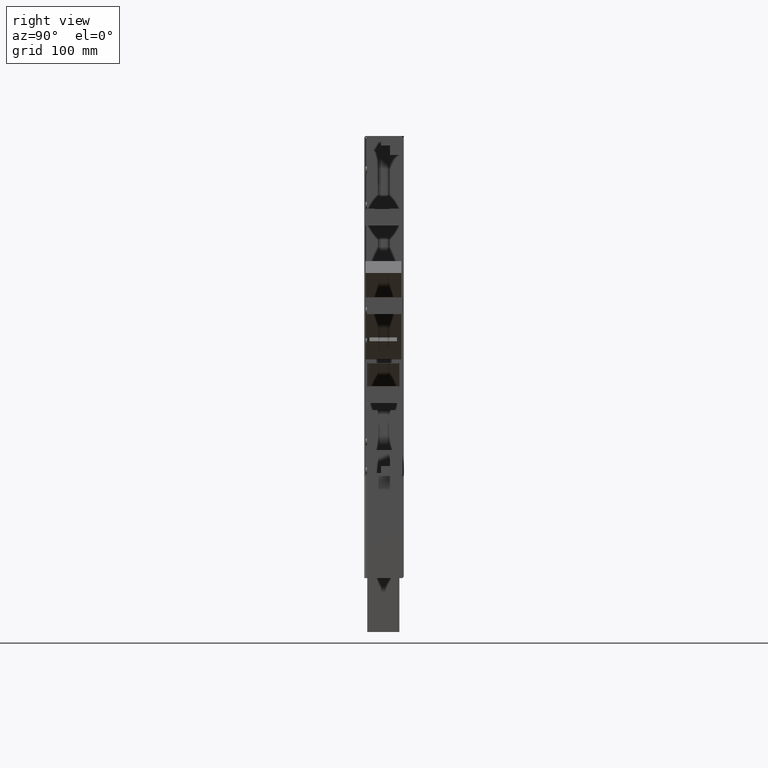
[diagram: clean part render]
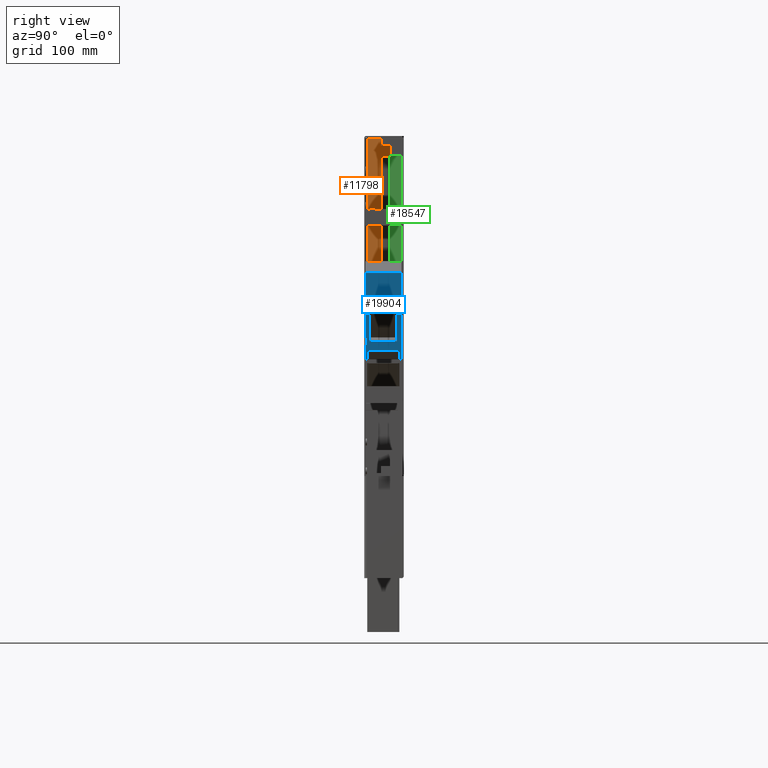
[diagram: same view with three faces highlighted in distinct colors, each labeled with its STEP entity id]
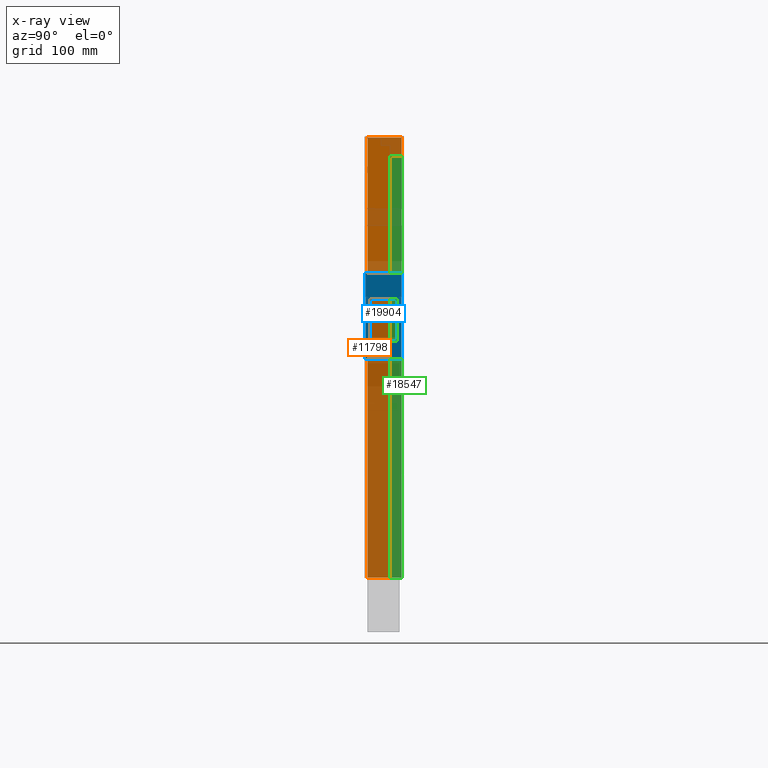
[diagram: x-ray of the same camera — body ghosted, the three highlighted faces saturated]
A machine part, right view with three faces highlighted in distinct colors.
The next image is the same camera in x-ray (body ghosted, the three faces saturated) — at least one of them is partly hidden behind the body in this view.
Their STEP definitions:

[orange] entity #11798 — the highlighted planar face has unit normal (1, 0, 0).
#11634=DIRECTION('',(0.E0,1.E0,0.E0));
#11635=VECTOR('',#11634,5.E1);
#11636=CARTESIAN_POINT('',(2.E0,0.E0,-3.235E2));
#11637=LINE('',#11636,#11635);
#11669=DIRECTION('',(0.E0,0.E0,1.E0));
#11670=VECTOR('',#11669,6.47E2);
#11671=CARTESIAN_POINT('',(2.E0,5.E1,-3.235E2));
#11672=LINE('',#11671,#11670);
#11676=DIRECTION('',(0.E0,0.E0,1.E0));
#11677=VECTOR('',#11676,6.47E2);
#11678=CARTESIAN_POINT('',(2.E0,0.E0,-3.235E2));
#11679=LINE('',#11678,#11677);
#11704=DIRECTION('',(0.E0,1.E0,0.E0));
#11705=VECTOR('',#11704,5.E1);
#11706=CARTESIAN_POINT('',(2.E0,0.E0,3.235E2));
#11707=LINE('',#11706,#11705);
#11712=CARTESIAN_POINT('',(2.E0,0.E0,-3.235E2));
#11714=VERTEX_POINT('',#11712);
#11715=CARTESIAN_POINT('',(2.E0,5.E1,-3.235E2));
#11716=VERTEX_POINT('',#11715);
#11720=CARTESIAN_POINT('',(2.E0,0.E0,3.235E2));
#11722=VERTEX_POINT('',#11720);
#11723=CARTESIAN_POINT('',(2.E0,5.E1,3.235E2));
#11724=VERTEX_POINT('',#11723);
#11786=CARTESIAN_POINT('',(2.E0,0.E0,-3.235E2));
#11787=DIRECTION('',(1.E0,0.E0,0.E0));
#11788=DIRECTION('',(0.E0,1.E0,0.E0));
#11789=AXIS2_PLACEMENT_3D('',#11786,#11787,#11788);
#11790=PLANE('',#11789);
#11791=ORIENTED_EDGE('',*,*,#11734,.F.);
#11792=ORIENTED_EDGE('',*,*,#11753,.T.);
#11794=ORIENTED_EDGE('',*,*,#11793,.T.);
#11795=ORIENTED_EDGE('',*,*,#11778,.F.);
#11796=EDGE_LOOP('',(#11791,#11792,#11794,#11795));
#11797=FACE_OUTER_BOUND('',#11796,.F.);
#11734=EDGE_CURVE('',#11714,#11716,#11637,.T.);
#11753=EDGE_CURVE('',#11714,#11722,#11679,.T.);
#11778=EDGE_CURVE('',#11716,#11724,#11672,.T.);
#11793=EDGE_CURVE('',#11722,#11724,#11707,.T.);
#11798=ADVANCED_FACE('',(#11797),#11790,.T.);

[blue] entity #19904 — the highlighted planar face has unit normal (-0.7071, 0, 0.7071).
#19679=DIRECTION('',(0.E0,0.E0,-1.E0));
#19680=VECTOR('',#19679,8.7E1);
#19681=CARTESIAN_POINT('',(1.2E1,5.7E0,1.2475E2));
#19682=LINE('',#19681,#19680);
#19686=DIRECTION('',(0.E0,1.E0,0.E0));
#19687=VECTOR('',#19686,4.05E1);
#19688=CARTESIAN_POINT('',(1.2E1,5.7E0,3.775E1));
#19689=LINE('',#19688,#19687);
#19693=DIRECTION('',(0.E0,0.E0,1.E0));
#19694=VECTOR('',#19693,8.7E1);
#19695=CARTESIAN_POINT('',(1.2E1,4.62E1,3.775E1));
#19696=LINE('',#19695,#19694);
#19700=DIRECTION('',(0.E0,-1.E0,0.E0));
#19701=VECTOR('',#19700,4.05E1);
#19702=CARTESIAN_POINT('',(1.2E1,4.62E1,1.2475E2));
#19703=LINE('',#19702,#19701);
#19707=DIRECTION('',(0.E0,1.E0,0.E0));
#19708=VECTOR('',#19707,5.250471515675E1);
#19709=CARTESIAN_POINT('',(1.2E1,-4.715156749015E-3,0.E0));
#19710=LINE('',#19709,#19708);
#19714=DIRECTION('',(0.E0,0.E0,-1.E0));
#19715=VECTOR('',#19714,1.796E2);
#19716=CARTESIAN_POINT('',(1.2E1,-4.715156749015E-3,1.796E2));
#19717=LINE('',#19716,#19715);
#19721=DIRECTION('',(0.E0,-1.E0,0.E0));
#19722=VECTOR('',#19721,5.250471515675E1);
#19723=CARTESIAN_POINT('',(1.2E1,5.25E1,1.796E2));
#19724=LINE('',#19723,#19722);
#19728=DIRECTION('',(0.E0,0.E0,1.E0));
#19729=VECTOR('',#19728,1.796E2);
#19730=CARTESIAN_POINT('',(1.2E1,5.25E1,0.E0));
#19731=LINE('',#19730,#19729);
#19851=CARTESIAN_POINT('',(1.2E1,5.25E1,1.796E2));
#19852=CARTESIAN_POINT('',(1.2E1,-4.715156749015E-3,1.796E2));
#19853=VERTEX_POINT('',#19851);
#19854=VERTEX_POINT('',#19852);
#19855=CARTESIAN_POINT('',(1.2E1,5.7E0,1.2475E2));
#19856=CARTESIAN_POINT('',(1.2E1,5.7E0,3.775E1));
#19857=VERTEX_POINT('',#19855);
#19858=VERTEX_POINT('',#19856);
#19859=CARTESIAN_POINT('',(1.2E1,4.62E1,3.775E1));
#19860=VERTEX_POINT('',#19859);
#19861=CARTESIAN_POINT('',(1.2E1,4.62E1,1.2475E2));
#19862=VERTEX_POINT('',#19861);
#19871=CARTESIAN_POINT('',(1.2E1,-4.715156749015E-3,0.E0));
#19872=CARTESIAN_POINT('',(1.2E1,5.25E1,0.E0));
#19873=VERTEX_POINT('',#19871);
#19874=VERTEX_POINT('',#19872);
#19879=CARTESIAN_POINT('',(1.2E1,0.E0,-8.E0));
#19880=DIRECTION('',(-1.E0,0.E0,0.E0));
#19881=DIRECTION('',(0.E0,1.E0,0.E0));
#19882=AXIS2_PLACEMENT_3D('',#19879,#19880,#19881);
#19883=PLANE('',#19882);
#19885=ORIENTED_EDGE('',*,*,#19884,.F.);
#19887=ORIENTED_EDGE('',*,*,#19886,.F.);
#19889=ORIENTED_EDGE('',*,*,#19888,.F.);
#19891=ORIENTED_EDGE('',*,*,#19890,.F.);
#19892=EDGE_LOOP('',(#19885,#19887,#19889,#19891));
#19893=FACE_OUTER_BOUND('',#19892,.F.);
#19895=ORIENTED_EDGE('',*,*,#19894,.T.);
#19897=ORIENTED_EDGE('',*,*,#19896,.T.);
#19899=ORIENTED_EDGE('',*,*,#19898,.T.);
#19901=ORIENTED_EDGE('',*,*,#19900,.T.);
#19902=EDGE_LOOP('',(#19895,#19897,#19899,#19901));
#19903=FACE_BOUND('',#19902,.F.);
#19884=EDGE_CURVE('',#19873,#19874,#19710,.T.);
#19886=EDGE_CURVE('',#19854,#19873,#19717,.T.);
#19888=EDGE_CURVE('',#19853,#19854,#19724,.T.);
#19890=EDGE_CURVE('',#19874,#19853,#19731,.T.);
#19894=EDGE_CURVE('',#19857,#19858,#19682,.T.);
#19896=EDGE_CURVE('',#19858,#19860,#19689,.T.);
#19898=EDGE_CURVE('',#19860,#19862,#19696,.T.);
#19900=EDGE_CURVE('',#19862,#19857,#19703,.T.);
#19904=ADVANCED_FACE('',(#19893,#19903),#19883,.F.);

[green] entity #18547 — the highlighted planar face has unit normal (1, 0, 0).
#18377=DIRECTION('',(0.E0,1.E0,0.E0));
#18378=VECTOR('',#18377,1.7E1);
#18379=CARTESIAN_POINT('',(-2.42E1,1.3E1,0.E0));
#18380=LINE('',#18379,#18378);
#18384=DIRECTION('',(0.E0,0.E0,-1.E0));
#18385=VECTOR('',#18384,6.2E2);
#18386=CARTESIAN_POINT('',(-2.42E1,3.E1,6.2E2));
#18387=LINE('',#18386,#18385);
#18391=DIRECTION('',(0.E0,-1.E0,0.E0));
#18392=VECTOR('',#18391,1.7E1);
#18393=CARTESIAN_POINT('',(-2.42E1,3.E1,6.2E2));
#18394=LINE('',#18393,#18392);
#18482=DIRECTION('',(0.E0,0.E0,-1.E0));
#18483=VECTOR('',#18482,6.2E2);
#18484=CARTESIAN_POINT('',(-2.42E1,1.3E1,6.2E2));
#18485=LINE('',#18484,#18483);
#18497=CARTESIAN_POINT('',(-2.42E1,1.3E1,6.2E2));
#18499=VERTEX_POINT('',#18497);
#18501=CARTESIAN_POINT('',(-2.42E1,1.3E1,0.E0));
#18503=VERTEX_POINT('',#18501);
#18509=CARTESIAN_POINT('',(-2.42E1,3.E1,6.2E2));
#18510=CARTESIAN_POINT('',(-2.42E1,3.E1,0.E0));
#18511=VERTEX_POINT('',#18509);
#18512=VERTEX_POINT('',#18510);
#18533=CARTESIAN_POINT('',(-2.42E1,2.47E1,6.2E2));
#18534=DIRECTION('',(-1.E0,0.E0,0.E0));
#18535=DIRECTION('',(0.E0,-1.E0,0.E0));
#18536=AXIS2_PLACEMENT_3D('',#18533,#18534,#18535);
#18537=PLANE('',#18536);
#18538=ORIENTED_EDGE('',*,*,#18518,.T.);
#18540=ORIENTED_EDGE('',*,*,#18539,.F.);
#18542=ORIENTED_EDGE('',*,*,#18541,.T.);
#18544=ORIENTED_EDGE('',*,*,#18543,.T.);
#18545=EDGE_LOOP('',(#18538,#18540,#18542,#18544));
#18546=FACE_OUTER_BOUND('',#18545,.F.);
#18518=EDGE_CURVE('',#18503,#18512,#18380,.T.);
#18539=EDGE_CURVE('',#18511,#18512,#18387,.T.);
#18541=EDGE_CURVE('',#18511,#18499,#18394,.T.);
#18543=EDGE_CURVE('',#18499,#18503,#18485,.T.);
#18547=ADVANCED_FACE('',(#18546),#18537,.T.);